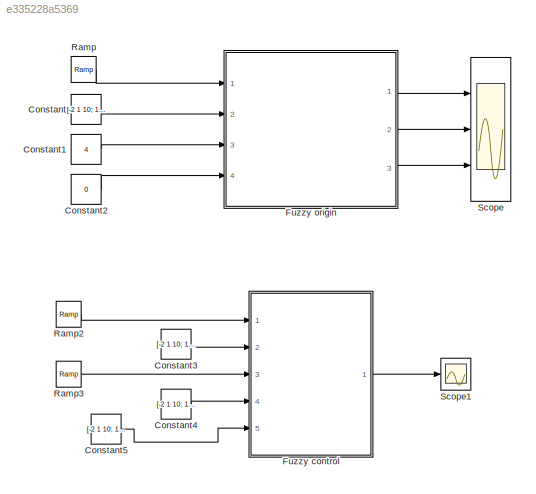
MODEL slx_e335228a5369
KIND model
BLOCK [Constant] Constant
  Value = [-2 1 10; 1 2 3; 2 3 10]
BLOCK [Constant] Constant1
  Value = 4
BLOCK [Constant] Constant2
  Value = 0
BLOCK [Constant] Constant3
  Value = [-2 1 10; 1 2 3; 2 3 10]
BLOCK [Constant] Constant4
  Value = [-2 1 10; 1 2 3; 2 3 10]
BLOCK [Constant] Constant5
  Value = [-2 1 10; 1 2 3; 2 3 10]
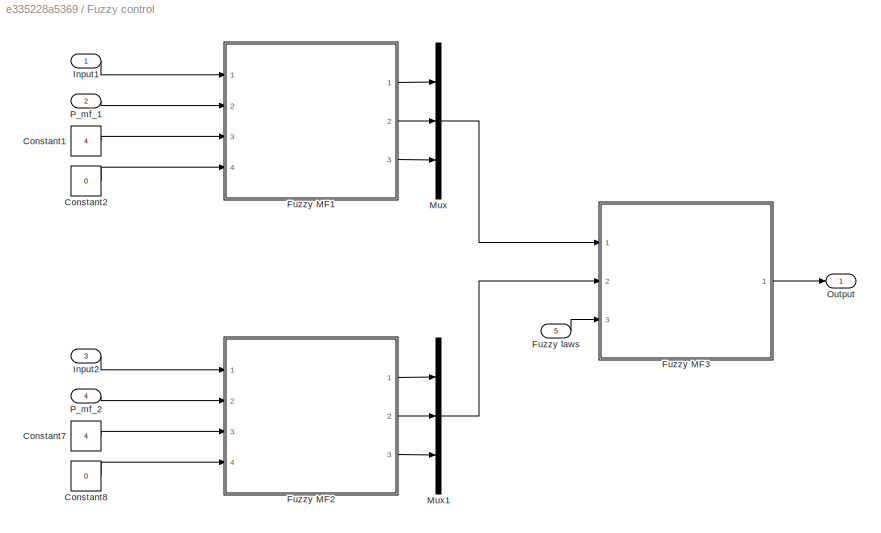
BLOCK [SubSystem] Fuzzy control
  Ports = [5, 1]
  RequestExecContextInheritance = off
BLOCK [Constant] Fuzzy control/Constant1
  Value = 4
BLOCK [Constant] Fuzzy control/Constant2
  Value = 0
BLOCK [Constant] Fuzzy control/Constant7
  Value = 4
BLOCK [Constant] Fuzzy control/Constant8
  Value = 0
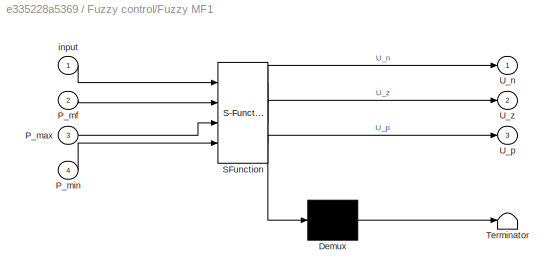
BLOCK [SubSystem] Fuzzy control/Fuzzy MF1
  ErrorFcn = Stateflow.Translate.translate
  PermitHierarchicalResolution = ExplicitOnly
  Ports = [4, 3]
  RequestExecContextInheritance = off
  SFBlockType = MATLAB Function
  TreatAsAtomicUnit = on
BLOCK [Demux] Fuzzy control/Fuzzy MF1/ Demux 
  Outputs = 1
  Ports = [1, 1]
BLOCK [S-Function] Fuzzy control/Fuzzy MF1/ SFunction 
  EnableBusSupport = on
  FunctionName = sf_sfun
  PortCounts = [4 4]
  Ports = [4, 4]
  Tag = Stateflow S-Function Fuzzy_mf 1
BLOCK [Terminator] Fuzzy control/Fuzzy MF1/ Terminator 
BLOCK [Inport] Fuzzy control/Fuzzy MF1/P_max
  IconDisplay = Port number
  Port = 3
BLOCK [Inport] Fuzzy control/Fuzzy MF1/P_mf
  IconDisplay = Port number
  Port = 2
BLOCK [Inport] Fuzzy control/Fuzzy MF1/P_min
  IconDisplay = Port number
  Port = 4
BLOCK [Outport] Fuzzy control/Fuzzy MF1/U_n
  IconDisplay = Port number
BLOCK [Outport] Fuzzy control/Fuzzy MF1/U_p
  IconDisplay = Port number
  Port = 3
BLOCK [Outport] Fuzzy control/Fuzzy MF1/U_z
  IconDisplay = Port number
  Port = 2
BLOCK [Inport] Fuzzy control/Fuzzy MF1/input
  IconDisplay = Port number
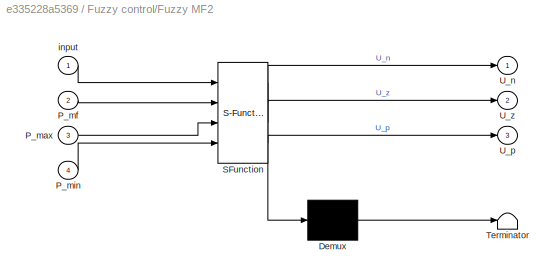
BLOCK [SubSystem] Fuzzy control/Fuzzy MF2
  ErrorFcn = Stateflow.Translate.translate
  PermitHierarchicalResolution = ExplicitOnly
  Ports = [4, 3]
  RequestExecContextInheritance = off
  SFBlockType = MATLAB Function
  TreatAsAtomicUnit = on
BLOCK [Demux] Fuzzy control/Fuzzy MF2/ Demux 
  Outputs = 1
  Ports = [1, 1]
BLOCK [S-Function] Fuzzy control/Fuzzy MF2/ SFunction 
  EnableBusSupport = on
  FunctionName = sf_sfun
  PortCounts = [4 4]
  Ports = [4, 4]
  Tag = Stateflow S-Function Fuzzy_mf 3
BLOCK [Terminator] Fuzzy control/Fuzzy MF2/ Terminator 
BLOCK [Inport] Fuzzy control/Fuzzy MF2/P_max
  IconDisplay = Port number
  Port = 3
BLOCK [Inport] Fuzzy control/Fuzzy MF2/P_mf
  IconDisplay = Port number
  Port = 2
BLOCK [Inport] Fuzzy control/Fuzzy MF2/P_min
  IconDisplay = Port number
  Port = 4
BLOCK [Outport] Fuzzy control/Fuzzy MF2/U_n
  IconDisplay = Port number
BLOCK [Outport] Fuzzy control/Fuzzy MF2/U_p
  IconDisplay = Port number
  Port = 3
BLOCK [Outport] Fuzzy control/Fuzzy MF2/U_z
  IconDisplay = Port number
  Port = 2
BLOCK [Inport] Fuzzy control/Fuzzy MF2/input
  IconDisplay = Port number
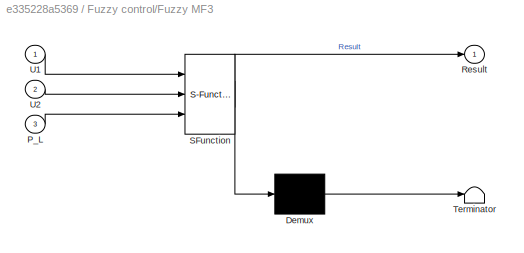
BLOCK [SubSystem] Fuzzy control/Fuzzy MF3
  ErrorFcn = Stateflow.Translate.translate
  PermitHierarchicalResolution = ExplicitOnly
  Ports = [3, 1]
  RequestExecContextInheritance = off
  SFBlockType = MATLAB Function
  TreatAsAtomicUnit = on
BLOCK [Demux] Fuzzy control/Fuzzy MF3/ Demux 
  Outputs = 1
  Ports = [1, 1]
BLOCK [S-Function] Fuzzy control/Fuzzy MF3/ SFunction 
  EnableBusSupport = on
  FunctionName = sf_sfun
  PortCounts = [3 2]
  Ports = [3, 2]
  Tag = Stateflow S-Function Fuzzy_mf 4
BLOCK [Terminator] Fuzzy control/Fuzzy MF3/ Terminator 
BLOCK [Inport] Fuzzy control/Fuzzy MF3/P_L
  IconDisplay = Port number
  Port = 3
BLOCK [Outport] Fuzzy control/Fuzzy MF3/Result
  IconDisplay = Port number
BLOCK [Inport] Fuzzy control/Fuzzy MF3/U1
  IconDisplay = Port number
BLOCK [Inport] Fuzzy control/Fuzzy MF3/U2
  IconDisplay = Port number
  Port = 2
BLOCK [Inport] Fuzzy control/Fuzzy laws
  IconDisplay = Port number
  Port = 5
BLOCK [Inport] Fuzzy control/Input1
  IconDisplay = Port number
BLOCK [Inport] Fuzzy control/Input2
  IconDisplay = Port number
  Port = 3
BLOCK [Mux] Fuzzy control/Mux
  DisplayOption = bar
  Inputs = 3
  Ports = [3, 1]
BLOCK [Mux] Fuzzy control/Mux1
  DisplayOption = bar
  Inputs = 3
  Ports = [3, 1]
BLOCK [Outport] Fuzzy control/Output
  IconDisplay = Port number
BLOCK [Inport] Fuzzy control/P_mf_1
  IconDisplay = Port number
  Port = 2
BLOCK [Inport] Fuzzy control/P_mf_2
  IconDisplay = Port number
  Port = 4
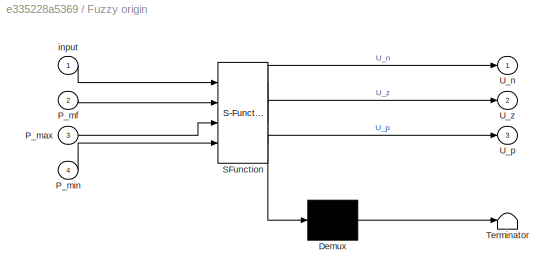
BLOCK [SubSystem] Fuzzy origin
  ErrorFcn = Stateflow.Translate.translate
  PermitHierarchicalResolution = ExplicitOnly
  Ports = [4, 3]
  RequestExecContextInheritance = off
  SFBlockType = MATLAB Function
  TreatAsAtomicUnit = on
BLOCK [Demux] Fuzzy origin/ Demux 
  Outputs = 1
  Ports = [1, 1]
BLOCK [S-Function] Fuzzy origin/ SFunction 
  EnableBusSupport = on
  FunctionName = sf_sfun
  PortCounts = [4 4]
  Ports = [4, 4]
  Tag = Stateflow S-Function Fuzzy_mf 2
BLOCK [Terminator] Fuzzy origin/ Terminator 
BLOCK [Inport] Fuzzy origin/P_max
  IconDisplay = Port number
  Port = 3
BLOCK [Inport] Fuzzy origin/P_mf
  IconDisplay = Port number
  Port = 2
BLOCK [Inport] Fuzzy origin/P_min
  IconDisplay = Port number
  Port = 4
BLOCK [Outport] Fuzzy origin/U_n
  IconDisplay = Port number
BLOCK [Outport] Fuzzy origin/U_p
  IconDisplay = Port number
  Port = 3
BLOCK [Outport] Fuzzy origin/U_z
  IconDisplay = Port number
  Port = 2
BLOCK [Inport] Fuzzy origin/input
  IconDisplay = Port number
BLOCK [Reference] Ramp  REF=simulink/Sources/Ramp
  Ports = [0, 1]
  SourceBlock = simulink/Sources/Ramp
  SourceType = Ramp
  VectorParams1D = on
  X0 = 0
  slope = 1
  start = 0
BLOCK [Reference] Ramp2  REF=simulink/Sources/Ramp
  Ports = [0, 1]
  SourceBlock = simulink/Sources/Ramp
  SourceType = Ramp
  VectorParams1D = on
  X0 = 0
  slope = 1
  start = 0
BLOCK [Reference] Ramp3  REF=simulink/Sources/Ramp
  Ports = [0, 1]
  SourceBlock = simulink/Sources/Ramp
  SourceType = Ramp
  VectorParams1D = on
  X0 = 0
  slope = 1
  start = 0
BLOCK [Scope] Scope
  DataFormat = StructureWithTime
  Floating = off
  NumInputPorts = 3
  Ports = [3]
  SampleTime = 0
  ShowLegends = off
  YMax = 5~5~5
  YMin = -5~-5~-5
BLOCK [Scope] Scope1
  DataFormat = StructureWithTime
  Floating = off
  NumInputPorts = 1
  Ports = [1]
  SampleTime = 0
  SaveName = ScopeData1
  ShowLegends = off
LINE Constant1:1 -> Fuzzy origin:3
LINE Constant2:1 -> Fuzzy origin:4
LINE Constant3:1 -> Fuzzy control:2
LINE Constant4:1 -> Fuzzy control:4
LINE Constant5:1 -> Fuzzy control:5
LINE Constant:1 -> Fuzzy origin:2
LINE Fuzzy control/Constant1:1 -> Fuzzy control/Fuzzy MF1:3
LINE Fuzzy control/Constant2:1 -> Fuzzy control/Fuzzy MF1:4
LINE Fuzzy control/Constant7:1 -> Fuzzy control/Fuzzy MF2:3
LINE Fuzzy control/Constant8:1 -> Fuzzy control/Fuzzy MF2:4
LINE Fuzzy control/Fuzzy MF1:1 -> Fuzzy control/Mux:1
LINE Fuzzy control/Fuzzy MF1:2 -> Fuzzy control/Mux:2
LINE Fuzzy control/Fuzzy MF1:3 -> Fuzzy control/Mux:3
LINE Fuzzy control/Fuzzy MF2:1 -> Fuzzy control/Mux1:1
LINE Fuzzy control/Fuzzy MF2:2 -> Fuzzy control/Mux1:2
LINE Fuzzy control/Fuzzy MF2:3 -> Fuzzy control/Mux1:3
LINE Fuzzy control/Fuzzy MF3:1 -> Fuzzy control/Output:1
LINE Fuzzy control/Fuzzy laws:1 -> Fuzzy control/Fuzzy MF3:3
LINE Fuzzy control/Input1:1 -> Fuzzy control/Fuzzy MF1:1
LINE Fuzzy control/Input2:1 -> Fuzzy control/Fuzzy MF2:1
LINE Fuzzy control/Mux1:1 -> Fuzzy control/Fuzzy MF3:2
LINE Fuzzy control/Mux:1 -> Fuzzy control/Fuzzy MF3:1
LINE Fuzzy control/P_mf_1:1 -> Fuzzy control/Fuzzy MF1:2
LINE Fuzzy control/P_mf_2:1 -> Fuzzy control/Fuzzy MF2:2
LINE Fuzzy control:1 -> Scope1:1
LINE Fuzzy origin:1 -> Scope:1
LINE Fuzzy origin:2 -> Scope:2
LINE Fuzzy origin:3 -> Scope:3
LINE Ramp2:1 -> Fuzzy control:1
LINE Ramp3:1 -> Fuzzy control:3
LINE Ramp:1 -> Fuzzy origin:1
